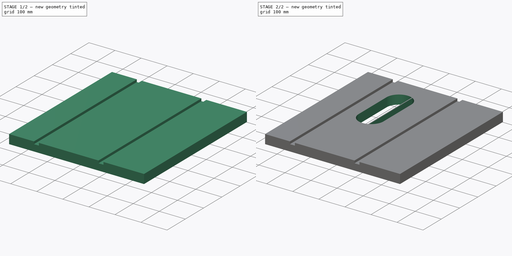
[diagram: build sequence overview — one tinted view per stage of 2, left to right]
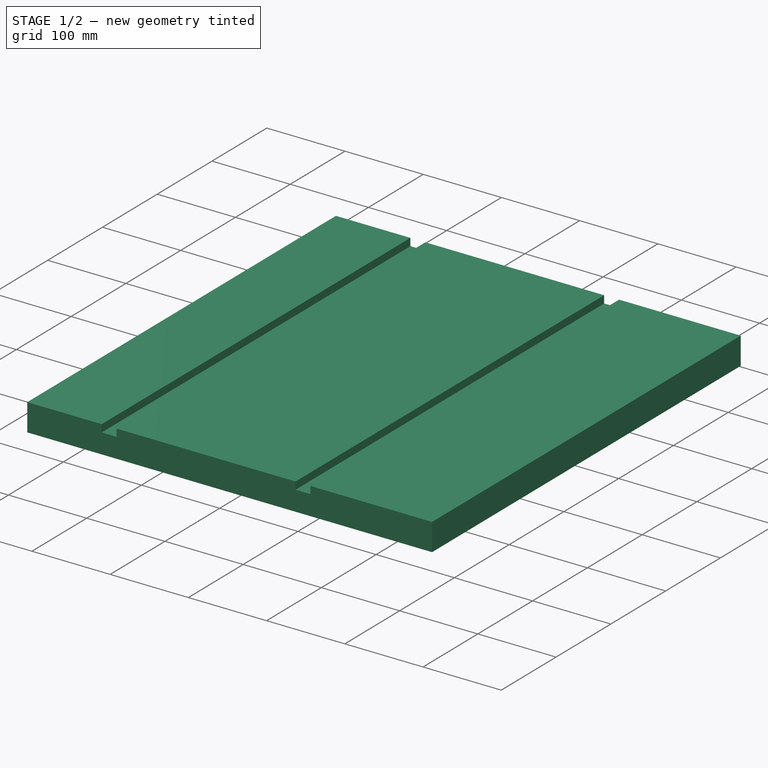
[diagram: stage 1 of 2 — iso view after this stage's code; geometry added in this stage tinted green]
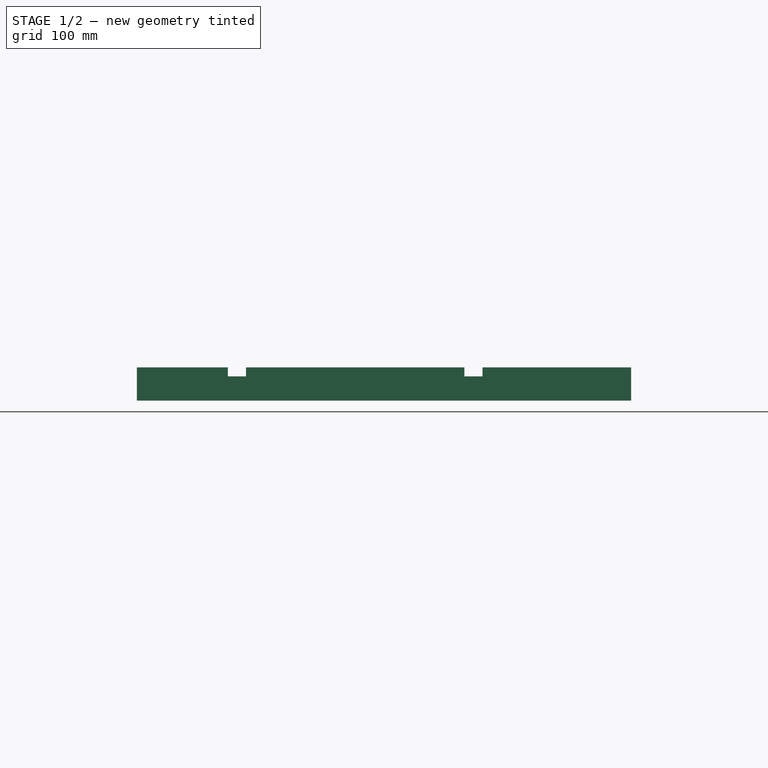
[diagram: stage 1 of 2 — front view after this stage's code; geometry added in this stage tinted green]
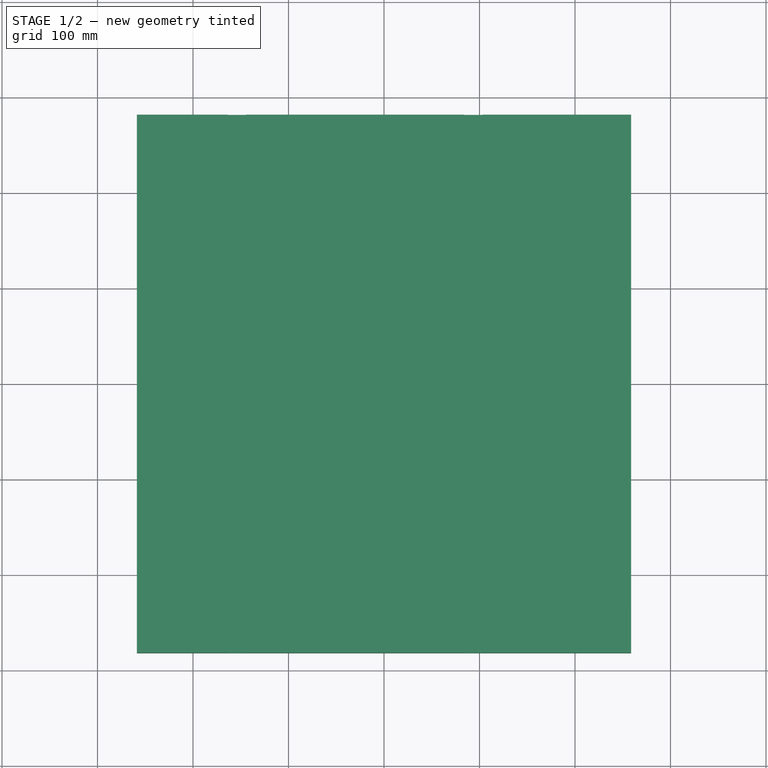
[diagram: stage 1 of 2 — top view after this stage's code; geometry added in this stage tinted green]
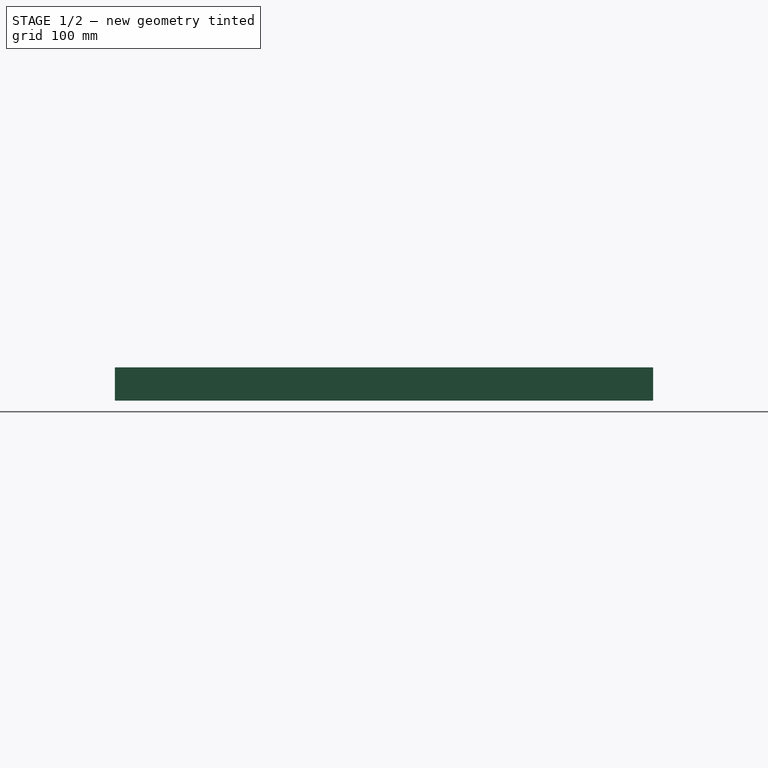
[diagram: stage 1 of 2 — right view after this stage's code; geometry added in this stage tinted green]
FCSTD DOCUMENT  (FreeCAD 0.20R29603 (Git))
Label: table_saw_top
License: All rights reserved
LicenseURL: http://en.wikipedia.org/wiki/All_rights_reserved
objects: Sketcher::SketchObject×4, PartDesign::Pad×2, PartDesign::Pocket×2, PartDesign::Body×1
note: 13 computed .brp shape members not serialized (recipe doc carries the construction recipe); baked Part::Feature solids carry a one-line shape summary decoded from their .brp

FEATURE [Sketcher::SketchObject] Sketch
  FullyConstrained = true
  MapMode = 5
  Support = -> [XY_Plane]
  sketch-geometry (5):
    g0: LineSegment StartX=-258.762 StartY=281.781 StartZ=0 EndX=-258.762 EndY=-281.781 EndZ=0
    g1: LineSegment StartX=-258.762 StartY=-281.781 StartZ=0 EndX=258.762 EndY=-281.781 EndZ=0
    g2: LineSegment StartX=258.762 StartY=-281.781 StartZ=0 EndX=258.762 EndY=281.781 EndZ=0
    g3: LineSegment StartX=258.762 StartY=281.781 StartZ=0 EndX=-258.762 EndY=281.781 EndZ=0
    g4: GeomPoint X=0 Y=0 Z=0
  constraints (12):
    c: Coincident(g0,g1)
    c: Coincident(g1,g2)
    c: Coincident(g2,g3)
    c: Coincident(g3,g0)
    c: Horizontal(g1)
    c: Horizontal(g3)
    c: Vertical(g0)
    c: Vertical(g2)
    c: Symmetric(g1,g0,g4)
    c: Coincident(g4,g-1)
    c: Distance(g3) = 517.525
    c: Distance(g0) = 563.562
FEATURE [PartDesign::Pad] Pad
  Direction = (0,0,1)
  Length = 34.925
  Length2 = 10
  Profile = -> Sketch
  ReferenceAxis = -> Sketch [N_Axis]
  Type = 0
FEATURE [Sketcher::SketchObject] Sketch001
  ExternalGeometry = -> [Pad]
  FullyConstrained = true
  MapMode = 5
  Placement = pos=(0,0,34.925) rot=(0,0,1;0rad)
  Support = -> [Pad]
  sketch-geometry (8):
    g0: LineSegment StartX=-163.512 StartY=281.781 StartZ=0 EndX=-144.462 EndY=281.781 EndZ=0
    g1: LineSegment StartX=-144.462 StartY=281.781 StartZ=0 EndX=-144.462 EndY=-281.781 EndZ=0
    g2: LineSegment StartX=-144.462 StartY=-281.781 StartZ=0 EndX=-163.512 EndY=-281.781 EndZ=0
    g3: LineSegment StartX=-163.512 StartY=-281.781 StartZ=0 EndX=-163.512 EndY=281.781 EndZ=0
    g4: LineSegment StartX=84.1375 StartY=281.781 StartZ=0 EndX=103.188 EndY=281.781 EndZ=0
    g5: LineSegment StartX=103.188 StartY=281.781 StartZ=0 EndX=103.188 EndY=-281.781 EndZ=0
    g6: LineSegment StartX=103.188 StartY=-281.781 StartZ=0 EndX=84.1375 EndY=-281.781 EndZ=0
    g7: LineSegment StartX=84.1375 StartY=-281.781 StartZ=0 EndX=84.1375 EndY=281.781 EndZ=0
  constraints (20):
    c: Coincident(g0,g1)
    c: Coincident(g1,g2)
    c: Coincident(g2,g3)
    c: Coincident(g3,g0)
    c: Vertical(g1)
    c: Vertical(g3)
    c: Coincident(g4,g5)
    c: Coincident(g5,g6)
    c: Coincident(g6,g7)
    c: Coincident(g7,g4)
    c: Vertical(g5)
    c: Vertical(g7)
    c: Distance(g0,g-5) = 95.25
    c: Tangent(g0,g-4)
    c: Tangent(g2,g-3)
    c: Distance(g0) = 19.05
    c: Tangent(g4,g-4)
    c: Tangent(g6,g-3)
    c: Distance(g6,g1) = 228.6
    c: Distance(g4) = 19.05
FEATURE [PartDesign::Pocket] Pocket
  BaseFeature = -> Pad
  Direction = (0,0,-1)
  Length = 9.525
  Length2 = 5
  Profile = -> Sketch001
  ReferenceAxis = -> Sketch001 [N_Axis]
  Type = 0
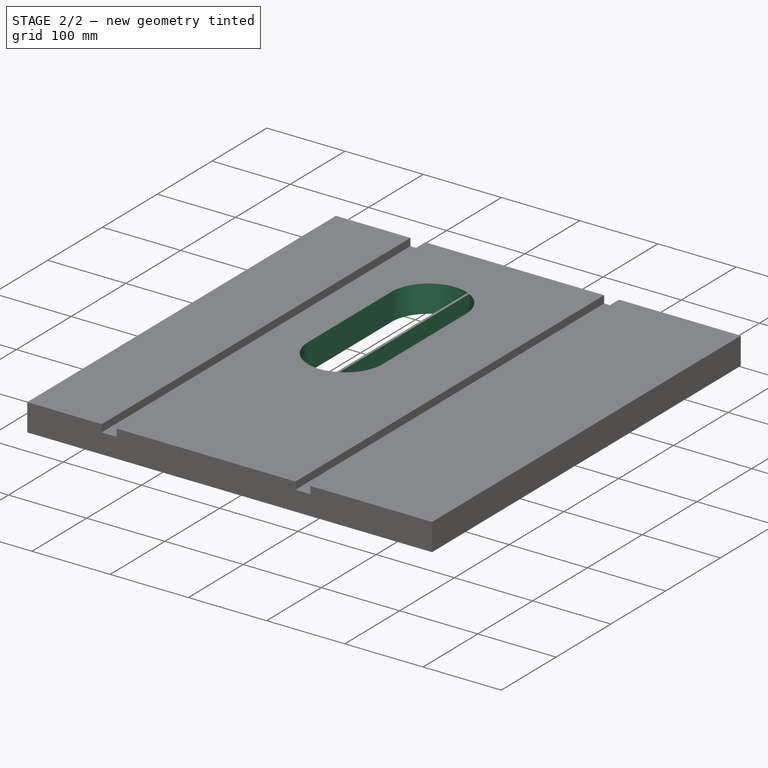
[diagram: stage 2 of 2 — iso view after this stage's code; geometry added in this stage tinted green]
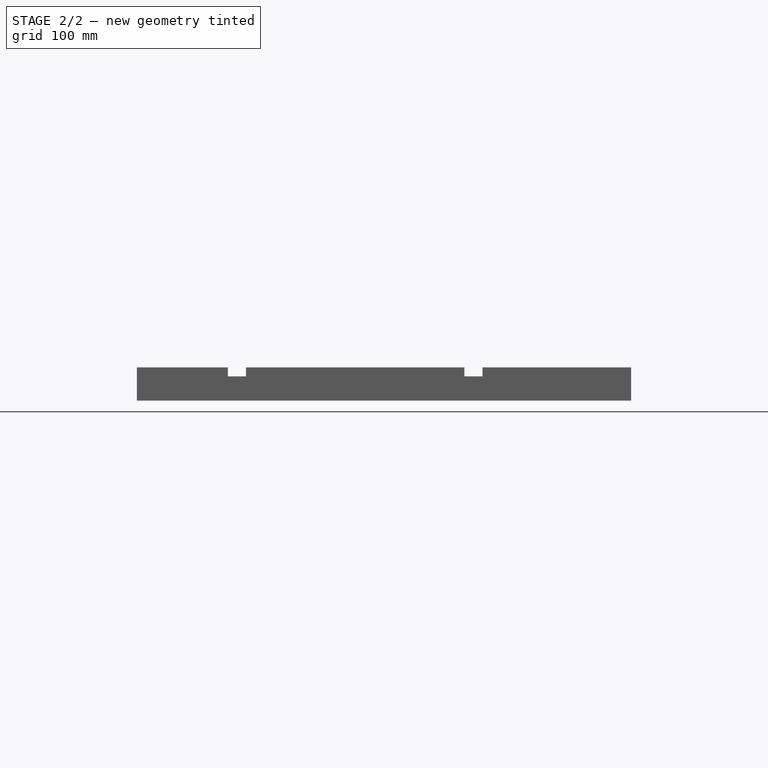
[diagram: stage 2 of 2 — front view after this stage's code; geometry added in this stage tinted green]
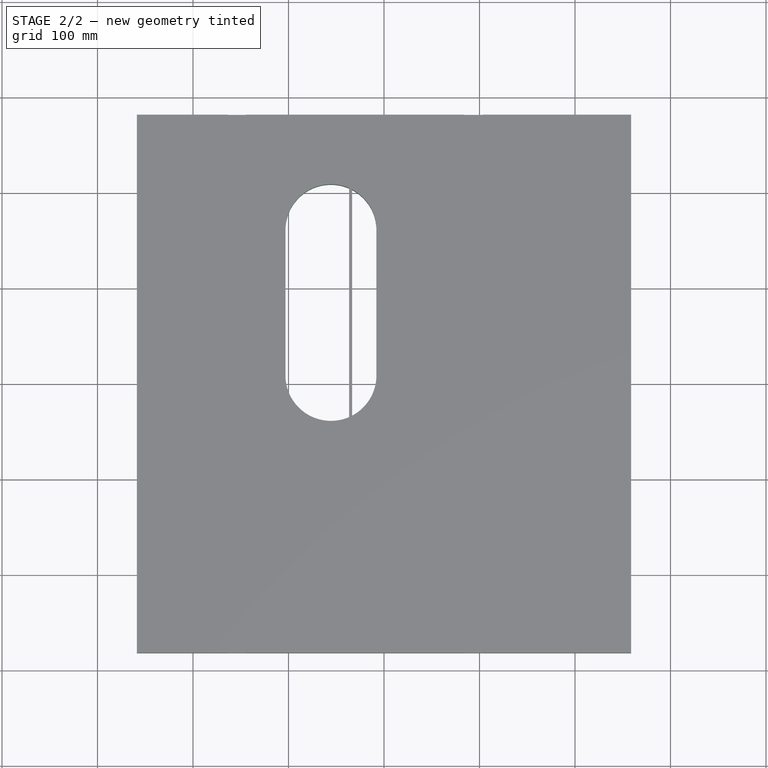
[diagram: stage 2 of 2 — top view after this stage's code; geometry added in this stage tinted green]
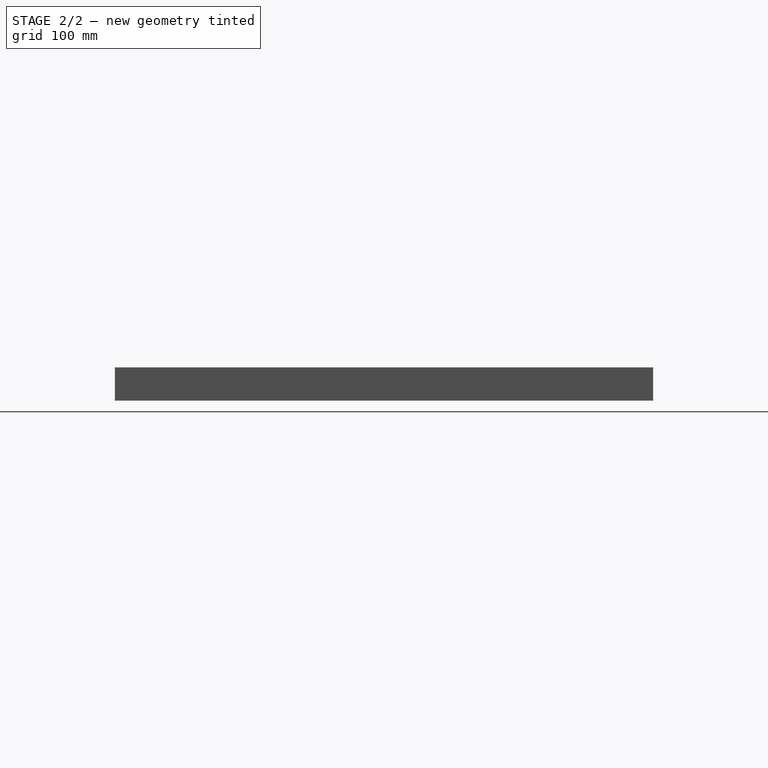
[diagram: stage 2 of 2 — right view after this stage's code; geometry added in this stage tinted green]
FEATURE [Sketcher::SketchObject] Sketch002
  ExternalGeometry = -> [Pocket]
  FullyConstrained = true
  MapMode = 5
  Placement = pos=(0,0,34.925) rot=(0,0,1;0rad)
  Support = -> [Pocket]
  sketch-geometry (4):
    g0: ArcOfCircle CenterX=-55.5625 CenterY=161.131 CenterZ=0 NormalX=0 NormalY=0 NormalZ=1 AngleXU=0 Radius=47.625 StartAngle=1.72e-14 EndAngle=3.14159
    g1: ArcOfCircle CenterX=-55.5625 CenterY=8.73125 CenterZ=0 NormalX=0 NormalY=0 NormalZ=1 AngleXU=0 Radius=47.625 StartAngle=3.14159 EndAngle=6.28319
    g2: LineSegment StartX=-103.188 StartY=161.131 StartZ=0 EndX=-103.188 EndY=8.73125 EndZ=0
    g3: LineSegment StartX=-7.9375 StartY=8.73125 StartZ=0 EndX=-7.9375 EndY=161.131 EndZ=0
  constraints (10):
    c: Tangent(g0,g2) = -1.5708
    c: Tangent(g2,g1) = -1.5708
    c: Tangent(g1,g3) = -1.5708
    c: Tangent(g3,g0) = -1.5708
    c: Equal(g0,g1)
    c: Vertical(g2)
    c: Distance(g0,g-3) = 155.575
    c: Distance(g0,g-3) = 250.825
    c: DistanceY(g1,g0) = 152.4
    c: Distance(g0,g-4) = 120.65
FEATURE [PartDesign::Pocket] Pocket001
  BaseFeature = -> Pocket
  Direction = (0,0,-1)
  Length = 5
  Length2 = 5
  Profile = -> Sketch002
  ReferenceAxis = -> Sketch002 [N_Axis]
  Type = 1
FEATURE [Sketcher::SketchObject] Sketch003
  ExternalGeometry = -> [Pocket001]
  FullyConstrained = true
  MapMode = 5
  Placement = pos=(0,0,34.925) rot=(0,0,1;0rad)
  Support = -> [Pocket001]
  sketch-geometry (4):
    g0: LineSegment StartX=-36.5125 StartY=281.781 StartZ=0 EndX=-33.3375 EndY=281.781 EndZ=0
    g1: LineSegment StartX=-33.3375 StartY=281.781 StartZ=0 EndX=-33.3375 EndY=-281.781 EndZ=0
    g2: LineSegment StartX=-33.3375 StartY=-281.781 StartZ=0 EndX=-36.5125 EndY=-281.781 EndZ=0
    g3: LineSegment StartX=-36.5125 StartY=-281.781 StartZ=0 EndX=-36.5125 EndY=281.781 EndZ=0
  constraints (10):
    c: Coincident(g0,g1)
    c: Coincident(g1,g2)
    c: Coincident(g2,g3)
    c: Coincident(g3,g0)
    c: Vertical(g1)
    c: Vertical(g3)
    c: Distance(g0,g-7) = 222.25
    c: Distance(g0) = 3.175
    c: Tangent(g0,g-9)
    c: Tangent(g2,g-8)
FEATURE [PartDesign::Pad] Pad001
  BaseFeature = -> Pocket001
  Direction = (0,0,1)
  Length = 10
  Length2 = 10
  Profile = -> Sketch003
  ReferenceAxis = -> Sketch003 [N_Axis]
  Reversed = true
  Type = 3
  UpToFace = -> Pocket001 [Face4]
FEATURE [PartDesign::Body] Body
  Group = -> [Sketch,Pad,Sketch001,Pocket,Sketch002,Pocket001,Sketch003,Pad001]
  Origin = -> Origin
  Tip = -> Pad001
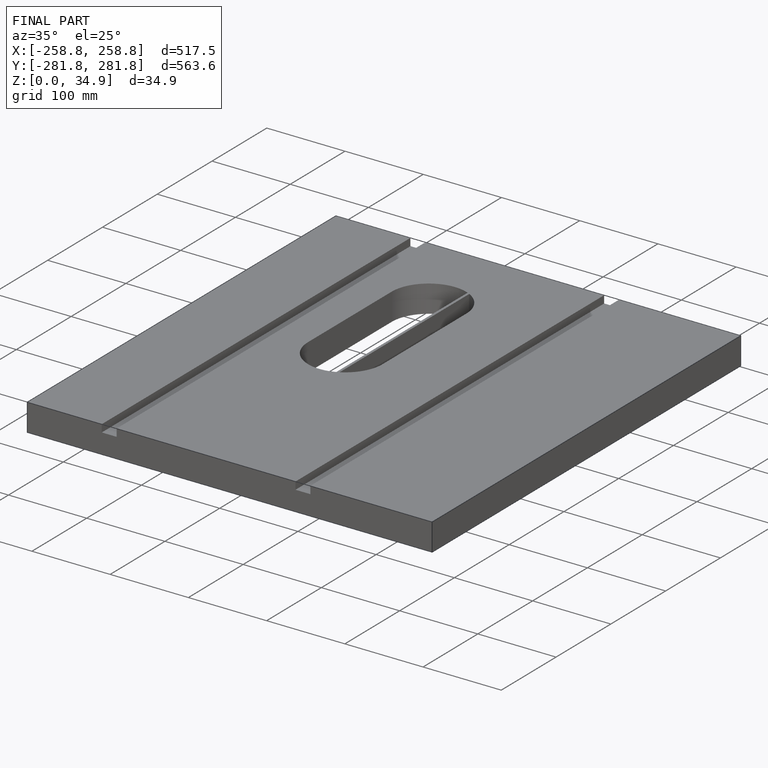
[diagram: finished part — iso view with bounding-box wireframe]
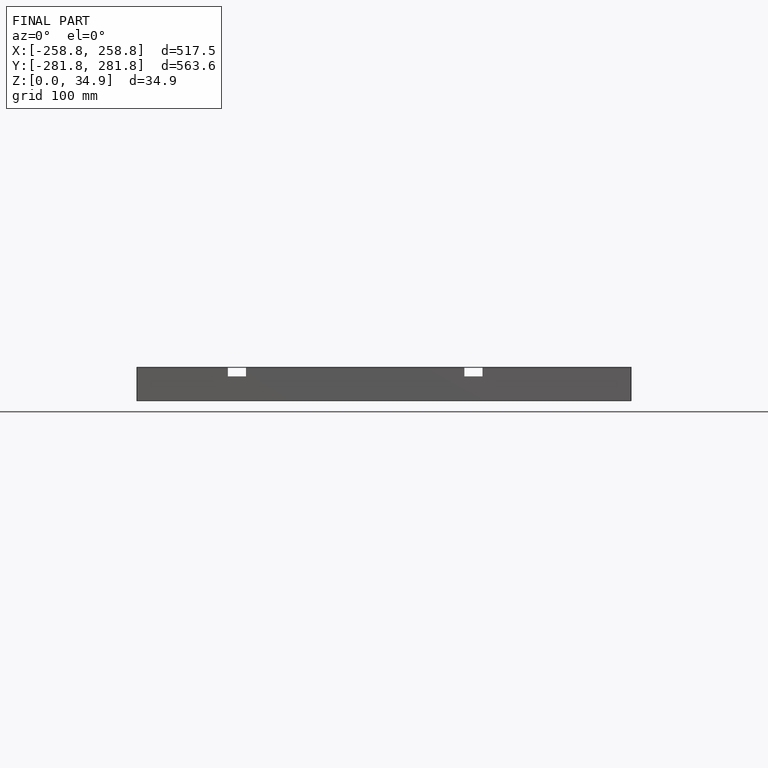
[diagram: finished part — front view with bounding-box wireframe]
